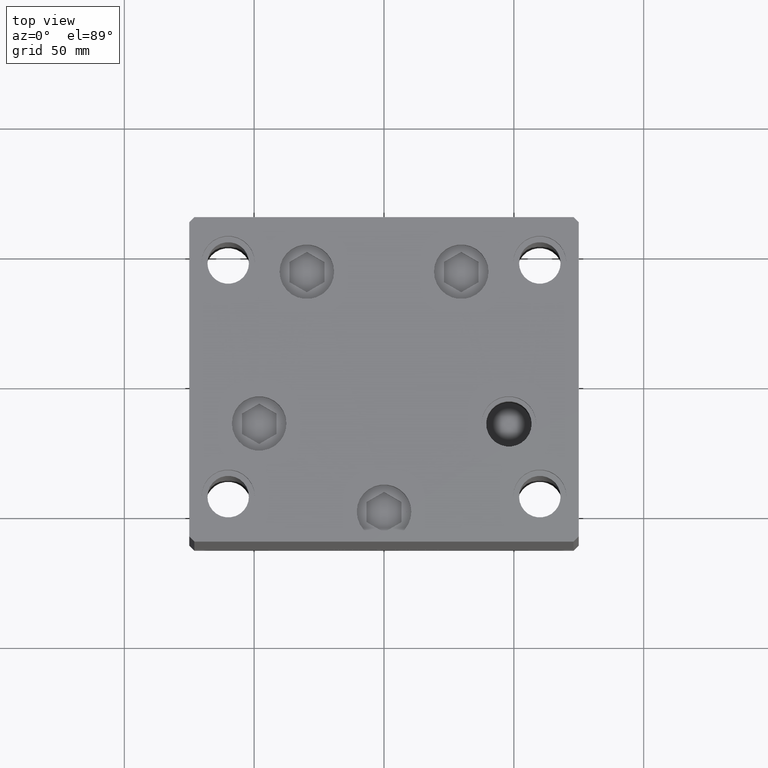
[diagram: clean part render]
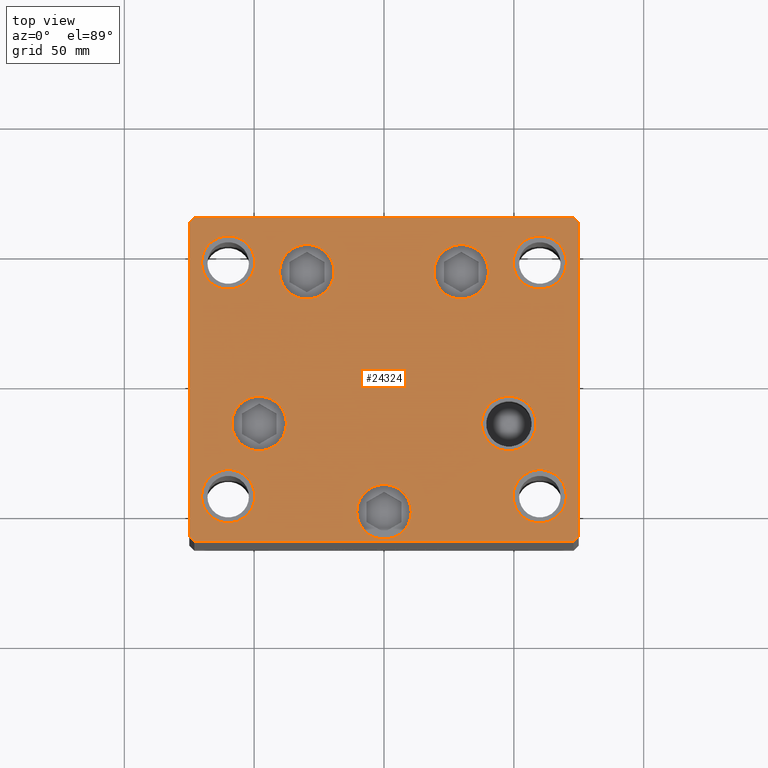
[diagram: same view with one face highlighted and labeled with its STEP entity id]
A machine part, top view. The second image highlights one B-rep face of the part: STEP entity #24324.
In plain terms, the highlighted planar face has unit normal (0, 0, 1).
Its self-contained STEP definition (entity closure, byte-faithful):
#94 = EDGE_CURVE ( 'NONE', #22825, #34608, #2429, .T. ) ;
#137 = DIRECTION ( 'NONE',  ( 0.000000000000000000, -0.000000000000000000, -1.000000000000000000 ) ) ;
#171 = AXIS2_PLACEMENT_3D ( 'NONE', #34058, #48912, #30813 ) ;
#353 = CARTESIAN_POINT ( 'NONE',  ( -59.99999999999999289, -45.00000000000000000, 0.000000000000000000 ) ) ;
#590 = DIRECTION ( 'NONE',  ( 0.000000000000000000, 0.000000000000000000, 1.000000000000000000 ) ) ;
#700 = AXIS2_PLACEMENT_3D ( 'NONE', #32361, #21213, #36323 ) ;
#777 = VERTEX_POINT ( 'NONE', #28829 ) ;
#851 = VERTEX_POINT ( 'NONE', #22146 ) ;
#904 = ORIENTED_EDGE ( 'NONE', *, *, #3904, .T. ) ;
#1005 = DIRECTION ( 'NONE',  ( 0.000000000000000000, -0.000000000000000000, -1.000000000000000000 ) ) ;
#1696 = CARTESIAN_POINT ( 'NONE',  ( -49.74999999999999289, 45.00000000000000000, 0.000000000000000000 ) ) ;
#1935 = CARTESIAN_POINT ( 'NONE',  ( -60.00000000000000000, 45.00000000000000000, 0.000000000000000000 ) ) ;
#1990 = DIRECTION ( 'NONE',  ( 0.000000000000000000, 0.000000000000000000, 1.000000000000000000 ) ) ;
#2180 = CARTESIAN_POINT ( 'NONE',  ( 74.99999999999992895, 60.50000000000002842, 0.000000000000000000 ) ) ;
#2353 = CARTESIAN_POINT ( 'NONE',  ( -58.58326112068522207, -17.00000000000000711, 0.000000000000000000 ) ) ;
#2429 = LINE ( 'NONE', #2180, #19351 ) ;
#2701 = VECTOR ( 'NONE', #40817, 1000.000000000000000 ) ;
#2729 = ORIENTED_EDGE ( 'NONE', *, *, #15329, .T. ) ;
#2743 = LINE ( 'NONE', #44275, #8436 ) ;
#3226 = DIRECTION ( 'NONE',  ( -1.000000000000000000, -1.901066822988282689E-16, 0.000000000000000000 ) ) ;
#3305 = AXIS2_PLACEMENT_3D ( 'NONE', #37344, #14315, #18523 ) ;
#3440 = CIRCLE ( 'NONE', #27103, 10.50000000000000178 ) ;
#3469 = ORIENTED_EDGE ( 'NONE', *, *, #46387, .T. ) ;
#3477 = LINE ( 'NONE', #44534, #2701 ) ;
#3886 = EDGE_CURVE ( 'NONE', #41904, #39926, #15782, .T. ) ;
#3904 = EDGE_CURVE ( 'NONE', #19060, #33629, #30028, .T. ) ;
#4088 = CIRCLE ( 'NONE', #10377, 10.50000000000000178 ) ;
#4567 = DIRECTION ( 'NONE',  ( 0.7071067811865463515, 0.7071067811865487940, 0.000000000000000000 ) ) ;
#5246 = DIRECTION ( 'NONE',  ( 0.000000000000000000, -0.000000000000000000, -1.000000000000000000 ) ) ;
#5552 = VECTOR ( 'NONE', #5781, 1000.000000000000000 ) ;
#5747 = EDGE_LOOP ( 'NONE', ( #2729, #28554, #19135, #20216, #18535, #30268, #40979, #42854 ) ) ;
#5781 = DIRECTION ( 'NONE',  ( 1.000000000000000000, 9.505334114941407284E-17, 0.000000000000000000 ) ) ;
#5895 = DIRECTION ( 'NONE',  ( 0.000000000000000000, 0.000000000000000000, 1.000000000000000000 ) ) ;
#5903 = CARTESIAN_POINT ( 'NONE',  ( -75.00000000000001421, 60.49999999999997158, 0.000000000000000000 ) ) ;
#5941 = CARTESIAN_POINT ( 'NONE',  ( 73.00000000000001421, -62.50000000000001421, 0.000000000000000000 ) ) ;
#6469 = DIRECTION ( 'NONE',  ( 0.7071067811865451302, -0.7071067811865500152, 0.000000000000000000 ) ) ;
#6692 = CARTESIAN_POINT ( 'NONE',  ( 0.000000000000000000, 0.000000000000000000, 0.000000000000000000 ) ) ;
#6801 = VERTEX_POINT ( 'NONE', #13502 ) ;
#6824 = AXIS2_PLACEMENT_3D ( 'NONE', #38131, #41590, #8440 ) ;
#6933 = ORIENTED_EDGE ( 'NONE', *, *, #30716, .T. ) ;
#7021 = CARTESIAN_POINT ( 'NONE',  ( 60.00000000000000000, -44.99999999999999289, 0.000000000000000000 ) ) ;
#7113 = AXIS2_PLACEMENT_3D ( 'NONE', #41905, #137, #38694 ) ;
#7179 = FACE_OUTER_BOUND ( 'NONE', #5747, .T. ) ;
#7308 = EDGE_CURVE ( 'NONE', #46909, #26237, #4088, .T. ) ;
#7766 = CARTESIAN_POINT ( 'NONE',  ( -59.99999999999999289, -45.00000000000000000, 0.000000000000000000 ) ) ;
#7819 = CARTESIAN_POINT ( 'NONE',  ( 49.75000000000000000, -44.99999999999999289, 0.000000000000000000 ) ) ;
#8436 = VECTOR ( 'NONE', #3226, 1000.000000000000000 ) ;
#8440 = DIRECTION ( 'NONE',  ( 1.000000000000000000, 0.000000000000000000, 0.000000000000000000 ) ) ;
#8633 = DIRECTION ( 'NONE',  ( 0.000000000000000000, -1.000000000000000000, 0.000000000000000000 ) ) ;
#9023 = VERTEX_POINT ( 'NONE', #47988 ) ;
#9147 = CARTESIAN_POINT ( 'NONE',  ( 29.73102073172059789, 41.43749999999999289, 0.000000000000000000 ) ) ;
#9197 = CARTESIAN_POINT ( 'NONE',  ( 6.245698675651500444E-15, -51.00000000000000000, 0.000000000000000000 ) ) ;
#9368 = DIRECTION ( 'NONE',  ( 1.000000000000000000, 0.000000000000000000, 0.000000000000000000 ) ) ;
#10049 = VECTOR ( 'NONE', #27424, 1000.000000000000114 ) ;
#10377 = AXIS2_PLACEMENT_3D ( 'NONE', #9147, #1005, #16312 ) ;
#10473 = DIRECTION ( 'NONE',  ( 0.000000000000000000, 0.000000000000000000, 1.000000000000000000 ) ) ;
#10858 = EDGE_CURVE ( 'NONE', #46720, #15529, #24188, .T. ) ;
#11070 = AXIS2_PLACEMENT_3D ( 'NONE', #40627, #36928, #13662 ) ;
#11259 = DIRECTION ( 'NONE',  ( 0.000000000000000000, -0.000000000000000000, -1.000000000000000000 ) ) ;
#11767 = ORIENTED_EDGE ( 'NONE', *, *, #15316, .T. ) ;
#11820 = CARTESIAN_POINT ( 'NONE',  ( 60.00000000000000000, -44.99999999999999289, 0.000000000000000000 ) ) ;
#12018 = CARTESIAN_POINT ( 'NONE',  ( -37.58326112068522207, -17.00000000000000711, 0.000000000000000000 ) ) ;
#12048 = CARTESIAN_POINT ( 'NONE',  ( -70.25000000000000000, 45.00000000000000000, 0.000000000000000000 ) ) ;
#12131 = CARTESIAN_POINT ( 'NONE',  ( 19.23102073172059434, 41.43749999999999289, 0.000000000000000000 ) ) ;
#12313 = EDGE_CURVE ( 'NONE', #34240, #34404, #23823, .T. ) ;
#12591 = AXIS2_PLACEMENT_3D ( 'NONE', #18168, #17922, #33285 ) ;
#13039 = ORIENTED_EDGE ( 'NONE', *, *, #31168, .F. ) ;
#13502 = CARTESIAN_POINT ( 'NONE',  ( 49.75000000000000000, 44.99999999999999289, 0.000000000000000000 ) ) ;
#13614 = CIRCLE ( 'NONE', #20700, 10.24999999999999467 ) ;
#13651 = AXIS2_PLACEMENT_3D ( 'NONE', #9197, #5246, #39365 ) ;
#13662 = DIRECTION ( 'NONE',  ( 1.000000000000000000, 0.000000000000000000, 0.000000000000000000 ) ) ;
#13931 = AXIS2_PLACEMENT_3D ( 'NONE', #6692, #15073, #14333 ) ;
#14007 = VERTEX_POINT ( 'NONE', #21408 ) ;
#14084 = FACE_BOUND ( 'NONE', #41694, .T. ) ;
#14107 = DIRECTION ( 'NONE',  ( 0.000000000000000000, -0.000000000000000000, -1.000000000000000000 ) ) ;
#14315 = DIRECTION ( 'NONE',  ( 0.000000000000000000, 0.000000000000000000, 1.000000000000000000 ) ) ;
#14333 = DIRECTION ( 'NONE',  ( 1.000000000000000000, 0.000000000000000000, 0.000000000000000000 ) ) ;
#14364 = EDGE_CURVE ( 'NONE', #31019, #43656, #13614, .T. ) ;
#14375 = CARTESIAN_POINT ( 'NONE',  ( -75.00000000000001421, 60.49999999999997158, 0.000000000000000000 ) ) ;
#14439 = DIRECTION ( 'NONE',  ( 0.000000000000000000, 0.000000000000000000, 1.000000000000000000 ) ) ;
#15073 = DIRECTION ( 'NONE',  ( -0.000000000000000000, 0.000000000000000000, 1.000000000000000000 ) ) ;
#15316 = EDGE_CURVE ( 'NONE', #48722, #777, #44496, .T. ) ;
#15329 = EDGE_CURVE ( 'NONE', #15529, #14007, #21784, .T. ) ;
#15529 = VERTEX_POINT ( 'NONE', #30669 ) ;
#15782 = CIRCLE ( 'NONE', #7113, 10.50000000000000178 ) ;
#16312 = DIRECTION ( 'NONE',  ( 1.000000000000000000, 0.000000000000000000, 0.000000000000000000 ) ) ;
#16427 = EDGE_CURVE ( 'NONE', #48117, #21786, #3440, .T. ) ;
#16515 = ORIENTED_EDGE ( 'NONE', *, *, #23128, .T. ) ;
#16569 = DIRECTION ( 'NONE',  ( 1.000000000000000000, 0.000000000000000000, 0.000000000000000000 ) ) ;
#17168 = CIRCLE ( 'NONE', #44849, 10.50000000000000178 ) ;
#17439 = EDGE_CURVE ( 'NONE', #851, #22825, #3477, .T. ) ;
#17797 = FACE_BOUND ( 'NONE', #39682, .T. ) ;
#17922 = DIRECTION ( 'NONE',  ( 0.000000000000000000, 0.000000000000000000, 1.000000000000000000 ) ) ;
#18168 = CARTESIAN_POINT ( 'NONE',  ( 60.00000000000000000, 44.99999999999999289, 0.000000000000000000 ) ) ;
#18523 = DIRECTION ( 'NONE',  ( 1.000000000000000000, 0.000000000000000000, 0.000000000000000000 ) ) ;
#18535 = ORIENTED_EDGE ( 'NONE', *, *, #94, .T. ) ;
#19060 = VERTEX_POINT ( 'NONE', #30555 ) ;
#19135 = ORIENTED_EDGE ( 'NONE', *, *, #25145, .T. ) ;
#19351 = VECTOR ( 'NONE', #40249, 1000.000000000000114 ) ;
#19476 = DIRECTION ( 'NONE',  ( 0.000000000000000000, 0.000000000000000000, 1.000000000000000000 ) ) ;
#19947 = EDGE_CURVE ( 'NONE', #30584, #40278, #28014, .T. ) ;
#20216 = ORIENTED_EDGE ( 'NONE', *, *, #17439, .T. ) ;
#20700 = AXIS2_PLACEMENT_3D ( 'NONE', #7021, #10473, #47848 ) ;
#21159 = AXIS2_PLACEMENT_3D ( 'NONE', #7766, #14439, #22355 ) ;
#21213 = DIRECTION ( 'NONE',  ( 0.000000000000000000, -0.000000000000000000, -1.000000000000000000 ) ) ;
#21218 = DIRECTION ( 'NONE',  ( 0.000000000000000000, -0.000000000000000000, -1.000000000000000000 ) ) ;
#21408 = CARTESIAN_POINT ( 'NONE',  ( -73.00000000000001421, -62.50000000000002842, 0.000000000000000000 ) ) ;
#21641 = ORIENTED_EDGE ( 'NONE', *, *, #7308, .T. ) ;
#21761 = FACE_BOUND ( 'NONE', #33455, .T. ) ;
#21784 = LINE ( 'NONE', #37632, #23153 ) ;
#21786 = VERTEX_POINT ( 'NONE', #2353 ) ;
#21787 = CARTESIAN_POINT ( 'NONE',  ( 29.73102073172059789, 41.43749999999999289, 0.000000000000000000 ) ) ;
#22056 = CARTESIAN_POINT ( 'NONE',  ( 58.58326112068522207, -16.99999999999999645, 0.000000000000000000 ) ) ;
#22146 = CARTESIAN_POINT ( 'NONE',  ( 75.00000000000001421, -60.50000000000000711, 0.000000000000000000 ) ) ;
#22355 = DIRECTION ( 'NONE',  ( 1.000000000000000000, 0.000000000000000000, 0.000000000000000000 ) ) ;
#22825 = VERTEX_POINT ( 'NONE', #44645 ) ;
#23128 = EDGE_CURVE ( 'NONE', #39926, #41904, #47101, .T. ) ;
#23153 = VECTOR ( 'NONE', #6469, 1000.000000000000114 ) ;
#23188 = EDGE_CURVE ( 'NONE', #6801, #9023, #31277, .T. ) ;
#23823 = CIRCLE ( 'NONE', #3305, 10.25000000000000178 ) ;
#24188 = LINE ( 'NONE', #5903, #24699 ) ;
#24233 = CARTESIAN_POINT ( 'NONE',  ( 60.00000000000000000, 44.99999999999999289, 0.000000000000000000 ) ) ;
#24237 = EDGE_CURVE ( 'NONE', #34608, #26350, #2743, .T. ) ;
#24324 = ADVANCED_FACE ( 'NONE', ( #44528, #17797, #14084, #32907, #37363, #41054, #36870, #21761, #29170, #7179 ), #45013, .T. ) ;
#24699 = VECTOR ( 'NONE', #8633, 1000.000000000000000 ) ;
#24767 = EDGE_LOOP ( 'NONE', ( #13039, #42140 ) ) ;
#25145 = EDGE_CURVE ( 'NONE', #48043, #851, #46115, .T. ) ;
#25895 = CIRCLE ( 'NONE', #21159, 10.25000000000000178 ) ;
#26237 = VERTEX_POINT ( 'NONE', #28935 ) ;
#26350 = VERTEX_POINT ( 'NONE', #27171 ) ;
#26724 = CARTESIAN_POINT ( 'NONE',  ( 10.50000000000000711, -51.00000000000000000, 0.000000000000000000 ) ) ;
#27103 = AXIS2_PLACEMENT_3D ( 'NONE', #36576, #21218, #9368 ) ;
#27171 = CARTESIAN_POINT ( 'NONE',  ( -73.00000000000001421, 62.49999999999998579, 0.000000000000000000 ) ) ;
#27424 = DIRECTION ( 'NONE',  ( -0.7071067811865451302, -0.7071067811865500152, 0.000000000000000000 ) ) ;
#27523 = CARTESIAN_POINT ( 'NONE',  ( 73.00000000000001421, -62.50000000000001421, 0.000000000000000000 ) ) ;
#27603 = AXIS2_PLACEMENT_3D ( 'NONE', #1935, #5895, #43723 ) ;
#28014 = CIRCLE ( 'NONE', #36733, 10.25000000000000178 ) ;
#28184 = VECTOR ( 'NONE', #4567, 1000.000000000000000 ) ;
#28554 = ORIENTED_EDGE ( 'NONE', *, *, #42802, .T. ) ;
#28560 = ORIENTED_EDGE ( 'NONE', *, *, #45210, .F. ) ;
#28829 = CARTESIAN_POINT ( 'NONE',  ( -10.49999999999999289, -51.00000000000000000, 0.000000000000000000 ) ) ;
#28935 = CARTESIAN_POINT ( 'NONE',  ( 40.23102073172059789, 41.43749999999999289, 0.000000000000000000 ) ) ;
#29170 = FACE_BOUND ( 'NONE', #30227, .T. ) ;
#30028 = CIRCLE ( 'NONE', #41845, 10.50000000000000178 ) ;
#30164 = EDGE_CURVE ( 'NONE', #26350, #46720, #46501, .T. ) ;
#30227 = EDGE_LOOP ( 'NONE', ( #45284, #34800 ) ) ;
#30268 = ORIENTED_EDGE ( 'NONE', *, *, #24237, .T. ) ;
#30555 = CARTESIAN_POINT ( 'NONE',  ( -40.23102073172060500, 41.43749999999998579, 0.000000000000000000 ) ) ;
#30584 = VERTEX_POINT ( 'NONE', #40096 ) ;
#30639 = ORIENTED_EDGE ( 'NONE', *, *, #42180, .F. ) ;
#30669 = CARTESIAN_POINT ( 'NONE',  ( -75.00000000000001421, -60.50000000000001421, 0.000000000000000000 ) ) ;
#30716 = EDGE_CURVE ( 'NONE', #26237, #46909, #17168, .T. ) ;
#30813 = DIRECTION ( 'NONE',  ( 1.000000000000000000, 0.000000000000000000, 0.000000000000000000 ) ) ;
#31019 = VERTEX_POINT ( 'NONE', #7819 ) ;
#31020 = DIRECTION ( 'NONE',  ( 1.000000000000000000, 0.000000000000000000, 0.000000000000000000 ) ) ;
#31155 = CARTESIAN_POINT ( 'NONE',  ( -73.00000000000001421, 62.49999999999998579, 0.000000000000000000 ) ) ;
#31168 = EDGE_CURVE ( 'NONE', #40278, #30584, #25895, .T. ) ;
#31193 = EDGE_LOOP ( 'NONE', ( #3469, #41524 ) ) ;
#31277 = CIRCLE ( 'NONE', #38424, 10.24999999999999467 ) ;
#32361 = CARTESIAN_POINT ( 'NONE',  ( 6.245698675651500444E-15, -51.00000000000000000, 0.000000000000000000 ) ) ;
#32907 = FACE_BOUND ( 'NONE', #37659, .T. ) ;
#33285 = DIRECTION ( 'NONE',  ( 1.000000000000000000, 0.000000000000000000, 0.000000000000000000 ) ) ;
#33455 = EDGE_LOOP ( 'NONE', ( #40367, #30639 ) ) ;
#33629 = VERTEX_POINT ( 'NONE', #47703 ) ;
#33643 = ORIENTED_EDGE ( 'NONE', *, *, #41913, .T. ) ;
#33708 = EDGE_LOOP ( 'NONE', ( #28560, #34575 ) ) ;
#34058 = CARTESIAN_POINT ( 'NONE',  ( -48.08326112068522207, -17.00000000000000711, 0.000000000000000000 ) ) ;
#34102 = AXIS2_PLACEMENT_3D ( 'NONE', #11820, #19476, #44983 ) ;
#34240 = VERTEX_POINT ( 'NONE', #1696 ) ;
#34381 = EDGE_CURVE ( 'NONE', #777, #48722, #44939, .T. ) ;
#34404 = VERTEX_POINT ( 'NONE', #12048 ) ;
#34575 = ORIENTED_EDGE ( 'NONE', *, *, #14364, .F. ) ;
#34608 = VERTEX_POINT ( 'NONE', #35778 ) ;
#34800 = ORIENTED_EDGE ( 'NONE', *, *, #23188, .F. ) ;
#35464 = LINE ( 'NONE', #47084, #5552 ) ;
#35778 = CARTESIAN_POINT ( 'NONE',  ( 72.99999999999992895, 62.50000000000001421, 0.000000000000000000 ) ) ;
#36323 = DIRECTION ( 'NONE',  ( 1.000000000000000000, 0.000000000000000000, 0.000000000000000000 ) ) ;
#36458 = CIRCLE ( 'NONE', #34102, 10.24999999999999467 ) ;
#36576 = CARTESIAN_POINT ( 'NONE',  ( -48.08326112068522207, -17.00000000000000711, 0.000000000000000000 ) ) ;
#36733 = AXIS2_PLACEMENT_3D ( 'NONE', #353, #590, #41873 ) ;
#36870 = FACE_BOUND ( 'NONE', #24767, .T. ) ;
#36895 = DIRECTION ( 'NONE',  ( 1.000000000000000000, 0.000000000000000000, 0.000000000000000000 ) ) ;
#36928 = DIRECTION ( 'NONE',  ( 0.000000000000000000, -0.000000000000000000, -1.000000000000000000 ) ) ;
#37344 = CARTESIAN_POINT ( 'NONE',  ( -60.00000000000000000, 45.00000000000000000, 0.000000000000000000 ) ) ;
#37363 = FACE_BOUND ( 'NONE', #31193, .T. ) ;
#37632 = CARTESIAN_POINT ( 'NONE',  ( -75.00000000000001421, -60.50000000000001421, 0.000000000000000000 ) ) ;
#37659 = EDGE_LOOP ( 'NONE', ( #46726, #11767 ) ) ;
#38131 = CARTESIAN_POINT ( 'NONE',  ( 48.08326112068522207, -16.99999999999999645, 0.000000000000000000 ) ) ;
#38424 = AXIS2_PLACEMENT_3D ( 'NONE', #24233, #1990, #16569 ) ;
#38694 = DIRECTION ( 'NONE',  ( 1.000000000000000000, 0.000000000000000000, 0.000000000000000000 ) ) ;
#38714 = CIRCLE ( 'NONE', #12591, 10.24999999999999467 ) ;
#39330 = EDGE_LOOP ( 'NONE', ( #904, #33643 ) ) ;
#39365 = DIRECTION ( 'NONE',  ( 1.000000000000000000, 0.000000000000000000, 0.000000000000000000 ) ) ;
#39682 = EDGE_LOOP ( 'NONE', ( #21641, #6933 ) ) ;
#39926 = VERTEX_POINT ( 'NONE', #43807 ) ;
#40096 = CARTESIAN_POINT ( 'NONE',  ( -70.25000000000000000, -45.00000000000000000, 0.000000000000000000 ) ) ;
#40249 = DIRECTION ( 'NONE',  ( -0.7071067811865500152, 0.7071067811865451302, 0.000000000000000000 ) ) ;
#40278 = VERTEX_POINT ( 'NONE', #44492 ) ;
#40367 = ORIENTED_EDGE ( 'NONE', *, *, #12313, .F. ) ;
#40627 = CARTESIAN_POINT ( 'NONE',  ( -29.73102073172060500, 41.43749999999998579, 0.000000000000000000 ) ) ;
#40817 = DIRECTION ( 'NONE',  ( -6.881547673296424104E-16, 1.000000000000000000, 0.000000000000000000 ) ) ;
#40979 = ORIENTED_EDGE ( 'NONE', *, *, #30164, .T. ) ;
#41054 = FACE_BOUND ( 'NONE', #33708, .T. ) ;
#41524 = ORIENTED_EDGE ( 'NONE', *, *, #16427, .T. ) ;
#41590 = DIRECTION ( 'NONE',  ( 0.000000000000000000, -0.000000000000000000, -1.000000000000000000 ) ) ;
#41612 = EDGE_CURVE ( 'NONE', #9023, #6801, #38714, .T. ) ;
#41677 = CARTESIAN_POINT ( 'NONE',  ( 70.25000000000000000, -44.99999999999999289, 0.000000000000000000 ) ) ;
#41694 = EDGE_LOOP ( 'NONE', ( #16515, #46712 ) ) ;
#41845 = AXIS2_PLACEMENT_3D ( 'NONE', #45390, #11259, #31020 ) ;
#41873 = DIRECTION ( 'NONE',  ( 1.000000000000000000, 0.000000000000000000, 0.000000000000000000 ) ) ;
#41904 = VERTEX_POINT ( 'NONE', #22056 ) ;
#41905 = CARTESIAN_POINT ( 'NONE',  ( 48.08326112068522207, -16.99999999999999645, 0.000000000000000000 ) ) ;
#41913 = EDGE_CURVE ( 'NONE', #33629, #19060, #42661, .T. ) ;
#42140 = ORIENTED_EDGE ( 'NONE', *, *, #19947, .F. ) ;
#42180 = EDGE_CURVE ( 'NONE', #34404, #34240, #42633, .T. ) ;
#42633 = CIRCLE ( 'NONE', #27603, 10.25000000000000178 ) ;
#42661 = CIRCLE ( 'NONE', #11070, 10.50000000000000178 ) ;
#42802 = EDGE_CURVE ( 'NONE', #14007, #48043, #35464, .T. ) ;
#42803 = CIRCLE ( 'NONE', #171, 10.50000000000000178 ) ;
#42854 = ORIENTED_EDGE ( 'NONE', *, *, #10858, .T. ) ;
#43656 = VERTEX_POINT ( 'NONE', #41677 ) ;
#43723 = DIRECTION ( 'NONE',  ( 1.000000000000000000, 0.000000000000000000, 0.000000000000000000 ) ) ;
#43807 = CARTESIAN_POINT ( 'NONE',  ( 37.58326112068522207, -16.99999999999999645, 0.000000000000000000 ) ) ;
#44275 = CARTESIAN_POINT ( 'NONE',  ( 72.99999999999992895, 62.50000000000001421, 0.000000000000000000 ) ) ;
#44492 = CARTESIAN_POINT ( 'NONE',  ( -49.74999999999998579, -45.00000000000000000, 0.000000000000000000 ) ) ;
#44496 = CIRCLE ( 'NONE', #13651, 10.50000000000000000 ) ;
#44528 = FACE_BOUND ( 'NONE', #39330, .T. ) ;
#44534 = CARTESIAN_POINT ( 'NONE',  ( 75.00000000000001421, -60.50000000000000711, 0.000000000000000000 ) ) ;
#44645 = CARTESIAN_POINT ( 'NONE',  ( 74.99999999999992895, 60.50000000000002842, 0.000000000000000000 ) ) ;
#44849 = AXIS2_PLACEMENT_3D ( 'NONE', #21787, #14107, #36895 ) ;
#44939 = CIRCLE ( 'NONE', #700, 10.50000000000000000 ) ;
#44983 = DIRECTION ( 'NONE',  ( 1.000000000000000000, 0.000000000000000000, 0.000000000000000000 ) ) ;
#45013 = PLANE ( 'NONE',  #13931 ) ;
#45210 = EDGE_CURVE ( 'NONE', #43656, #31019, #36458, .T. ) ;
#45284 = ORIENTED_EDGE ( 'NONE', *, *, #41612, .F. ) ;
#45390 = CARTESIAN_POINT ( 'NONE',  ( -29.73102073172060500, 41.43749999999998579, 0.000000000000000000 ) ) ;
#46115 = LINE ( 'NONE', #27523, #28184 ) ;
#46387 = EDGE_CURVE ( 'NONE', #21786, #48117, #42803, .T. ) ;
#46501 = LINE ( 'NONE', #31155, #10049 ) ;
#46712 = ORIENTED_EDGE ( 'NONE', *, *, #3886, .T. ) ;
#46720 = VERTEX_POINT ( 'NONE', #14375 ) ;
#46726 = ORIENTED_EDGE ( 'NONE', *, *, #34381, .T. ) ;
#46909 = VERTEX_POINT ( 'NONE', #12131 ) ;
#47084 = CARTESIAN_POINT ( 'NONE',  ( -73.00000000000001421, -62.50000000000002842, 0.000000000000000000 ) ) ;
#47101 = CIRCLE ( 'NONE', #6824, 10.50000000000000178 ) ;
#47703 = CARTESIAN_POINT ( 'NONE',  ( -19.23102073172060145, 41.43749999999998579, 0.000000000000000000 ) ) ;
#47848 = DIRECTION ( 'NONE',  ( 1.000000000000000000, 0.000000000000000000, 0.000000000000000000 ) ) ;
#47988 = CARTESIAN_POINT ( 'NONE',  ( 70.25000000000000000, 44.99999999999999289, 0.000000000000000000 ) ) ;
#48043 = VERTEX_POINT ( 'NONE', #5941 ) ;
#48117 = VERTEX_POINT ( 'NONE', #12018 ) ;
#48722 = VERTEX_POINT ( 'NONE', #26724 ) ;
#48912 = DIRECTION ( 'NONE',  ( 0.000000000000000000, -0.000000000000000000, -1.000000000000000000 ) ) ;